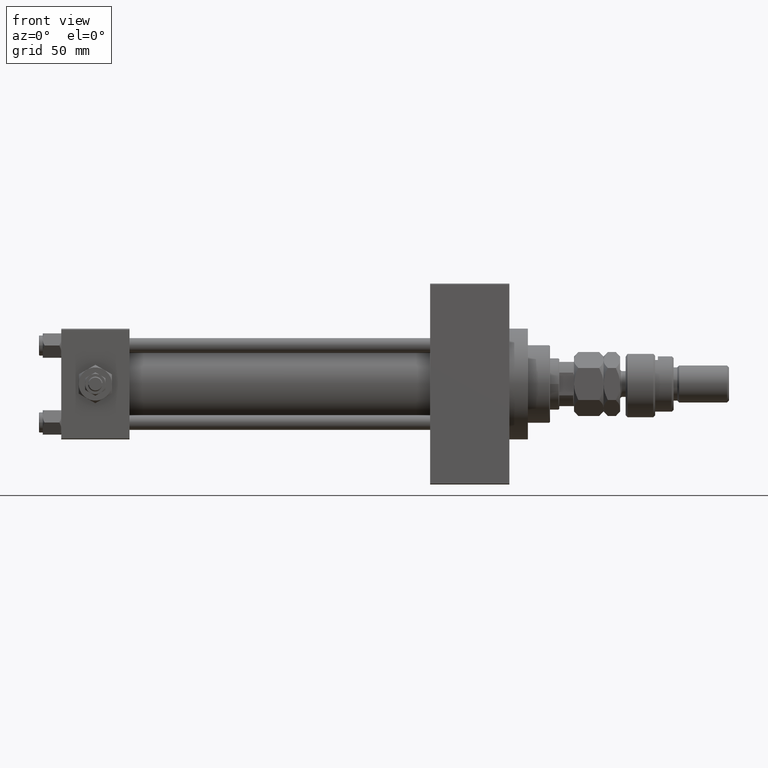
[diagram: clean part render]
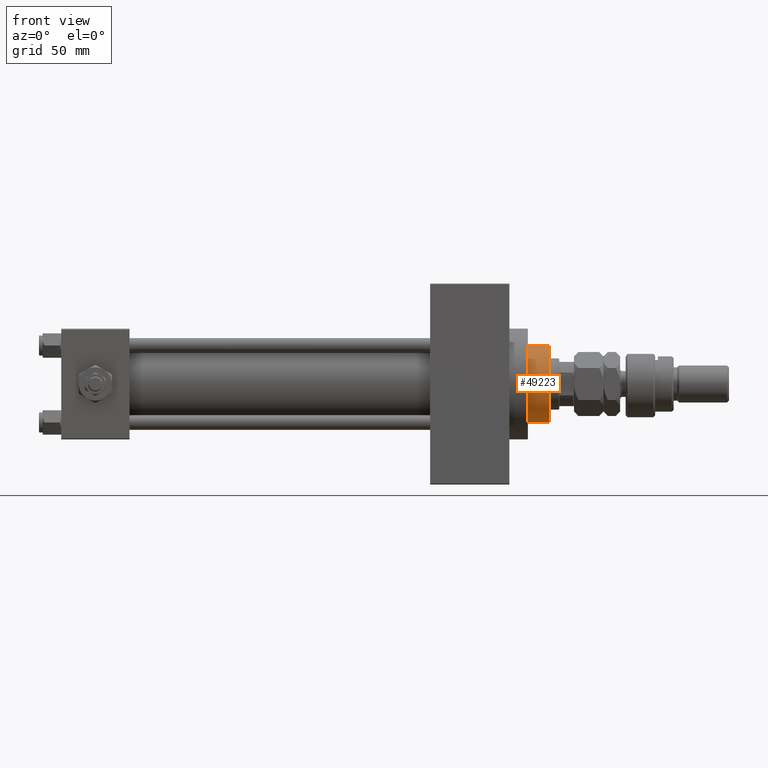
[diagram: same view with one face highlighted and labeled with its STEP entity id]
A machine part, front view. The second image highlights one B-rep face of the part: STEP entity #49223.
In plain terms, the highlighted cylindrical surface (partial cylindrical patch) has radius 21 mm, axis along (-1, 0, 0).
Its self-contained STEP definition (entity closure, byte-faithful):
#1607 = DIRECTION ( 'NONE',  ( -1.000000000000000000, 0.000000000000000000, 0.000000000000000000 ) ) ;
#2061 = LINE ( 'NONE', #45603, #4328 ) ;
#4328 = VECTOR ( 'NONE', #5970, 1000.000000000000000 ) ;
#4756 = DIRECTION ( 'NONE',  ( -0.000000000000000000, -0.000000000000000000, -1.000000000000000000 ) ) ;
#4775 = EDGE_CURVE ( 'NONE', #46468, #44907, #51125, .T. ) ;
#5608 = VECTOR ( 'NONE', #43055, 1000.000000000000000 ) ;
#5970 = DIRECTION ( 'NONE',  ( -0.000000000000000000, -0.000000000000000000, -1.000000000000000000 ) ) ;
#6166 = ORIENTED_EDGE ( 'NONE', *, *, #14959, .T. ) ;
#10639 = EDGE_CURVE ( 'NONE', #21804, #46468, #13203, .T. ) ;
#10900 = CIRCLE ( 'NONE', #33381, 21.00000000000000000 ) ;
#12818 = VERTEX_POINT ( 'NONE', #48747 ) ;
#13203 = CIRCLE ( 'NONE', #32405, 21.00000000000000000 ) ;
#14959 = EDGE_CURVE ( 'NONE', #44907, #12818, #10900, .T. ) ;
#15273 = ORIENTED_EDGE ( 'NONE', *, *, #21343, .F. ) ;
#16491 = CYLINDRICAL_SURFACE ( 'NONE', #33364, 21.00000000000000000 ) ;
#17002 = FACE_OUTER_BOUND ( 'NONE', #34401, .T. ) ;
#21343 = EDGE_CURVE ( 'NONE', #21804, #12818, #2061, .T. ) ;
#21804 = VERTEX_POINT ( 'NONE', #28343 ) ;
#23627 = ORIENTED_EDGE ( 'NONE', *, *, #10639, .T. ) ;
#28241 = DIRECTION ( 'NONE',  ( 1.000000000000000000, 0.000000000000000000, 0.000000000000000000 ) ) ;
#28343 = CARTESIAN_POINT ( 'NONE',  ( -21.00000000000000000, 0.000000000000000000, 54.75999999999999091 ) ) ;
#31106 = CARTESIAN_POINT ( 'NONE',  ( 21.00000000000000000, 2.571758278209441661E-15, 55.26000000000000512 ) ) ;
#32405 = AXIS2_PLACEMENT_3D ( 'NONE', #51415, #36302, #28241 ) ;
#33364 = AXIS2_PLACEMENT_3D ( 'NONE', #37338, #4756, #1607 ) ;
#33381 = AXIS2_PLACEMENT_3D ( 'NONE', #33940, #33427, #49303 ) ;
#33427 = DIRECTION ( 'NONE',  ( 0.000000000000000000, 0.000000000000000000, 1.000000000000000000 ) ) ;
#33940 = CARTESIAN_POINT ( 'NONE',  ( 0.000000000000000000, 0.000000000000000000, 43.25999999999999801 ) ) ;
#34401 = EDGE_LOOP ( 'NONE', ( #23627, #40669, #6166, #15273 ) ) ;
#36302 = DIRECTION ( 'NONE',  ( 0.000000000000000000, 0.000000000000000000, -1.000000000000000000 ) ) ;
#37338 = CARTESIAN_POINT ( 'NONE',  ( 0.000000000000000000, 0.000000000000000000, 55.26000000000000512 ) ) ;
#40669 = ORIENTED_EDGE ( 'NONE', *, *, #4775, .T. ) ;
#42961 = CARTESIAN_POINT ( 'NONE',  ( 21.00000000000000000, 2.571758278209441661E-15, 54.75999999999999091 ) ) ;
#43055 = DIRECTION ( 'NONE',  ( -0.000000000000000000, -0.000000000000000000, -1.000000000000000000 ) ) ;
#44907 = VERTEX_POINT ( 'NONE', #46732 ) ;
#45603 = CARTESIAN_POINT ( 'NONE',  ( -21.00000000000000000, 0.000000000000000000, 55.26000000000000512 ) ) ;
#46468 = VERTEX_POINT ( 'NONE', #42961 ) ;
#46732 = CARTESIAN_POINT ( 'NONE',  ( 21.00000000000000000, 2.571758278209441661E-15, 43.25999999999999801 ) ) ;
#48747 = CARTESIAN_POINT ( 'NONE',  ( -21.00000000000000000, 0.000000000000000000, 43.25999999999999801 ) ) ;
#49223 = ADVANCED_FACE ( 'NONE', ( #17002 ), #16491, .T. ) ;
#49303 = DIRECTION ( 'NONE',  ( 1.000000000000000000, 0.000000000000000000, 0.000000000000000000 ) ) ;
#51125 = LINE ( 'NONE', #31106, #5608 ) ;
#51415 = CARTESIAN_POINT ( 'NONE',  ( 0.000000000000000000, 0.000000000000000000, 54.75999999999999091 ) ) ;